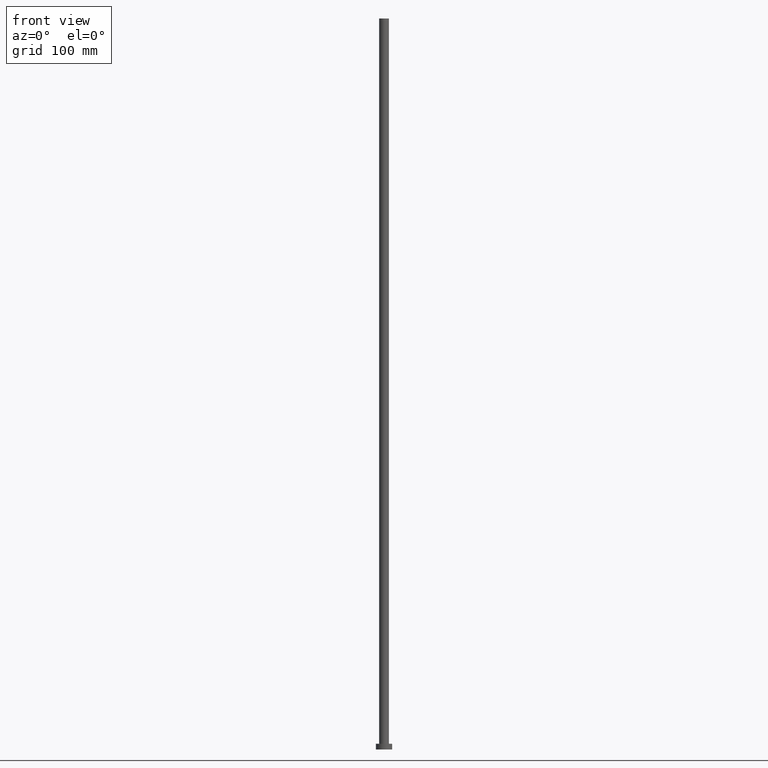
[diagram: clean part render]
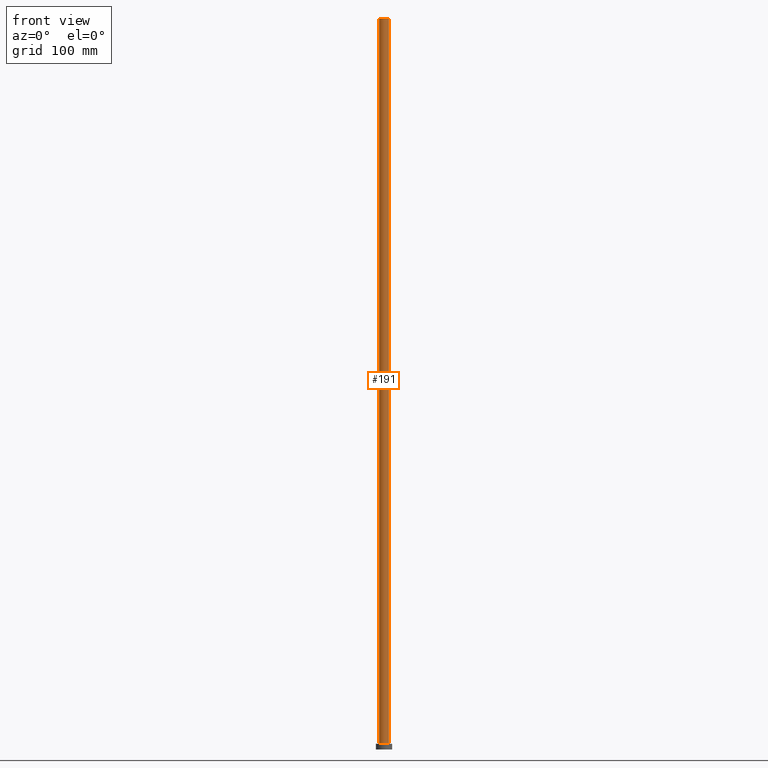
[diagram: same view with one face highlighted and labeled with its STEP entity id]
A machine part, front view. The second image highlights one B-rep face of the part: STEP entity #191.
In plain terms, the highlighted cylindrical surface (edge-blend (fillet) strip) has radius 4.25 mm, axis along (-0, -0, -1).
Its self-contained STEP definition (entity closure, byte-faithful):
#1 = VECTOR ( 'NONE', #229, 1000.000000000000000 ) ;
#7 = VERTEX_POINT ( 'NONE', #142 ) ;
#13 = CARTESIAN_POINT ( 'NONE',  ( 0.000000000000000000, 0.000000000000000000, 5.000000000000000000 ) ) ;
#15 = CARTESIAN_POINT ( 'NONE',  ( 0.000000000000000000, 0.000000000000000000, 630.0000000000000000 ) ) ;
#16 = DIRECTION ( 'NONE',  ( -1.000000000000000000, 0.000000000000000000, 0.000000000000000000 ) ) ;
#22 = VERTEX_POINT ( 'NONE', #185 ) ;
#24 = EDGE_CURVE ( 'NONE', #7, #70, #38, .T. ) ;
#37 = CARTESIAN_POINT ( 'NONE',  ( 0.000000000000000000, 0.000000000000000000, 630.0000000000000000 ) ) ;
#38 = CIRCLE ( 'NONE', #216, 4.250000000000000000 ) ;
#45 = EDGE_LOOP ( 'NONE', ( #105, #109, #227, #123 ) ) ;
#65 = VECTOR ( 'NONE', #165, 1000.000000000000000 ) ;
#70 = VERTEX_POINT ( 'NONE', #207 ) ;
#74 = LINE ( 'NONE', #247, #1 ) ;
#81 = EDGE_CURVE ( 'NONE', #112, #7, #167, .T. ) ;
#83 = FACE_OUTER_BOUND ( 'NONE', #45, .T. ) ;
#97 = DIRECTION ( 'NONE',  ( 0.000000000000000000, 0.000000000000000000, 1.000000000000000000 ) ) ;
#98 = DIRECTION ( 'NONE',  ( 1.000000000000000000, 0.000000000000000000, 0.000000000000000000 ) ) ;
#105 = ORIENTED_EDGE ( 'NONE', *, *, #127, .F. ) ;
#109 = ORIENTED_EDGE ( 'NONE', *, *, #238, .F. ) ;
#112 = VERTEX_POINT ( 'NONE', #246 ) ;
#116 = CIRCLE ( 'NONE', #137, 4.250000000000000000 ) ;
#123 = ORIENTED_EDGE ( 'NONE', *, *, #24, .T. ) ;
#127 = EDGE_CURVE ( 'NONE', #22, #70, #74, .T. ) ;
#133 = CYLINDRICAL_SURFACE ( 'NONE', #160, 4.250000000000000000 ) ;
#137 = AXIS2_PLACEMENT_3D ( 'NONE', #15, #97, #98 ) ;
#142 = CARTESIAN_POINT ( 'NONE',  ( -4.250000000000000000, 0.000000000000000000, 5.000000000000000000 ) ) ;
#160 = AXIS2_PLACEMENT_3D ( 'NONE', #37, #192, #16 ) ;
#165 = DIRECTION ( 'NONE',  ( -0.000000000000000000, -0.000000000000000000, -1.000000000000000000 ) ) ;
#167 = LINE ( 'NONE', #187, #65 ) ;
#185 = CARTESIAN_POINT ( 'NONE',  ( 4.250000000000000000, 5.204748896376250699E-16, 630.0000000000000000 ) ) ;
#187 = CARTESIAN_POINT ( 'NONE',  ( -4.250000000000000000, 0.000000000000000000, 630.0000000000000000 ) ) ;
#191 = ADVANCED_FACE ( 'NONE', ( #83 ), #133, .T. ) ;
#192 = DIRECTION ( 'NONE',  ( -0.000000000000000000, -0.000000000000000000, -1.000000000000000000 ) ) ;
#207 = CARTESIAN_POINT ( 'NONE',  ( 4.250000000000000000, 5.204748896376250699E-16, 5.000000000000000000 ) ) ;
#211 = DIRECTION ( 'NONE',  ( 0.000000000000000000, 0.000000000000000000, 1.000000000000000000 ) ) ;
#216 = AXIS2_PLACEMENT_3D ( 'NONE', #13, #211, #244 ) ;
#227 = ORIENTED_EDGE ( 'NONE', *, *, #81, .T. ) ;
#229 = DIRECTION ( 'NONE',  ( -0.000000000000000000, -0.000000000000000000, -1.000000000000000000 ) ) ;
#238 = EDGE_CURVE ( 'NONE', #112, #22, #116, .T. ) ;
#244 = DIRECTION ( 'NONE',  ( 1.000000000000000000, 0.000000000000000000, 0.000000000000000000 ) ) ;
#246 = CARTESIAN_POINT ( 'NONE',  ( -4.250000000000000000, 0.000000000000000000, 630.0000000000000000 ) ) ;
#247 = CARTESIAN_POINT ( 'NONE',  ( 4.250000000000000000, 5.204748896376250699E-16, 630.0000000000000000 ) ) ;